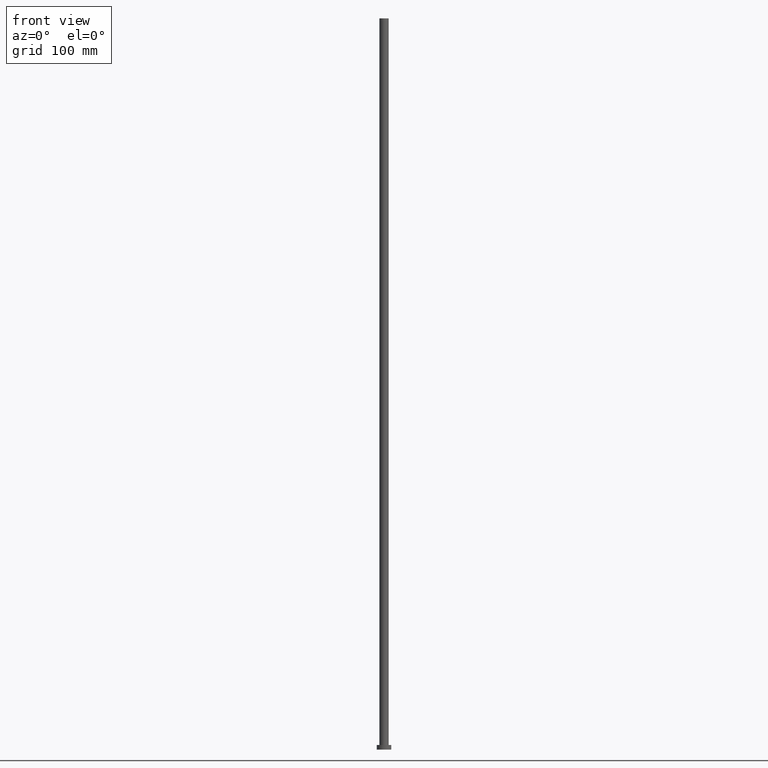
[diagram: clean part render]
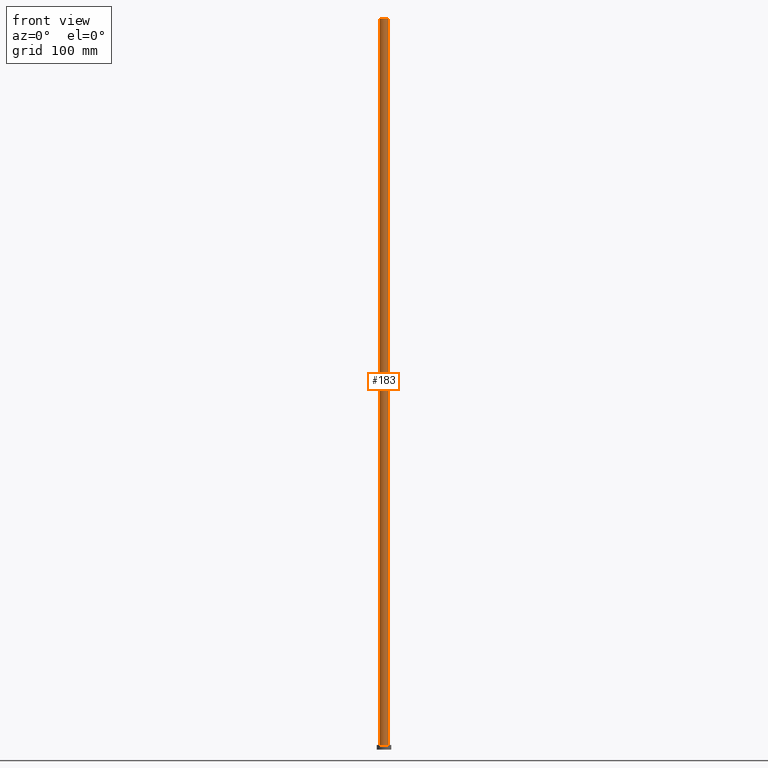
[diagram: same view with one face highlighted and labeled with its STEP entity id]
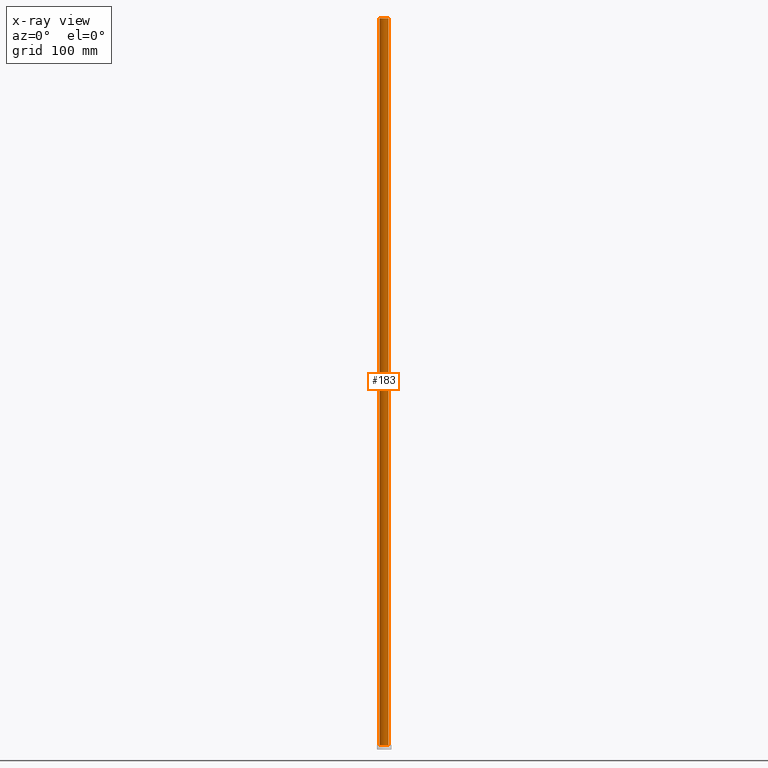
[diagram: x-ray of the same camera — body ghosted, the highlighted face saturated]
A machine part, front view. The second image highlights one B-rep face of the part: STEP entity #183.
The next image is the same camera in x-ray: the body ghosted, the highlighted face saturated — about 0% of this face is hidden behind the body in this view.
In plain terms, the highlighted cylindrical surface (edge-blend (fillet) strip) has radius 5 mm, axis along (-0, -0, -1).
Its self-contained STEP definition (entity closure, byte-faithful):
#2 = ORIENTED_EDGE ( 'NONE', *, *, #237, .T. ) ;
#9 = VERTEX_POINT ( 'NONE', #63 ) ;
#17 = DIRECTION ( 'NONE',  ( 1.000000000000000000, 0.000000000000000000, 0.000000000000000000 ) ) ;
#23 = CARTESIAN_POINT ( 'NONE',  ( -5.000000000000000888, 0.000000000000000000, 800.0000000000000000 ) ) ;
#28 = VERTEX_POINT ( 'NONE', #188 ) ;
#39 = DIRECTION ( 'NONE',  ( -0.000000000000000000, -0.000000000000000000, -1.000000000000000000 ) ) ;
#44 = LINE ( 'NONE', #61, #243 ) ;
#50 = EDGE_CURVE ( 'NONE', #28, #9, #44, .T. ) ;
#61 = CARTESIAN_POINT ( 'NONE',  ( 5.000000000000000888, 6.123233995736767268E-16, 800.0000000000000000 ) ) ;
#63 = CARTESIAN_POINT ( 'NONE',  ( 5.000000000000000888, 6.123233995736767268E-16, 5.000000000000000000 ) ) ;
#64 = EDGE_LOOP ( 'NONE', ( #83, #182, #235, #2 ) ) ;
#67 = VECTOR ( 'NONE', #176, 1000.000000000000000 ) ;
#80 = VERTEX_POINT ( 'NONE', #105 ) ;
#83 = ORIENTED_EDGE ( 'NONE', *, *, #50, .F. ) ;
#105 = CARTESIAN_POINT ( 'NONE',  ( -5.000000000000000888, 0.000000000000000000, 800.0000000000000000 ) ) ;
#107 = CARTESIAN_POINT ( 'NONE',  ( 0.000000000000000000, 0.000000000000000000, 5.000000000000000000 ) ) ;
#111 = CARTESIAN_POINT ( 'NONE',  ( 0.000000000000000000, 0.000000000000000000, 800.0000000000000000 ) ) ;
#134 = EDGE_CURVE ( 'NONE', #80, #28, #184, .T. ) ;
#136 = AXIS2_PLACEMENT_3D ( 'NONE', #107, #228, #17 ) ;
#142 = AXIS2_PLACEMENT_3D ( 'NONE', #189, #39, #152 ) ;
#152 = DIRECTION ( 'NONE',  ( -1.000000000000000000, 0.000000000000000000, 0.000000000000000000 ) ) ;
#176 = DIRECTION ( 'NONE',  ( -0.000000000000000000, -0.000000000000000000, -1.000000000000000000 ) ) ;
#182 = ORIENTED_EDGE ( 'NONE', *, *, #134, .F. ) ;
#183 = ADVANCED_FACE ( 'NONE', ( #211 ), #227, .T. ) ;
#184 = CIRCLE ( 'NONE', #241, 5.000000000000000888 ) ;
#187 = VERTEX_POINT ( 'NONE', #230 ) ;
#188 = CARTESIAN_POINT ( 'NONE',  ( 5.000000000000000888, 6.123233995736767268E-16, 800.0000000000000000 ) ) ;
#189 = CARTESIAN_POINT ( 'NONE',  ( 0.000000000000000000, 0.000000000000000000, 800.0000000000000000 ) ) ;
#194 = DIRECTION ( 'NONE',  ( 0.000000000000000000, 0.000000000000000000, 1.000000000000000000 ) ) ;
#201 = EDGE_CURVE ( 'NONE', #80, #187, #212, .T. ) ;
#211 = FACE_OUTER_BOUND ( 'NONE', #64, .T. ) ;
#212 = LINE ( 'NONE', #23, #67 ) ;
#227 = CYLINDRICAL_SURFACE ( 'NONE', #142, 5.000000000000000888 ) ;
#228 = DIRECTION ( 'NONE',  ( 0.000000000000000000, 0.000000000000000000, 1.000000000000000000 ) ) ;
#230 = CARTESIAN_POINT ( 'NONE',  ( -5.000000000000000888, 0.000000000000000000, 5.000000000000000000 ) ) ;
#235 = ORIENTED_EDGE ( 'NONE', *, *, #201, .T. ) ;
#237 = EDGE_CURVE ( 'NONE', #187, #9, #249, .T. ) ;
#241 = AXIS2_PLACEMENT_3D ( 'NONE', #111, #194, #255 ) ;
#243 = VECTOR ( 'NONE', #244, 1000.000000000000000 ) ;
#244 = DIRECTION ( 'NONE',  ( -0.000000000000000000, -0.000000000000000000, -1.000000000000000000 ) ) ;
#249 = CIRCLE ( 'NONE', #136, 5.000000000000000888 ) ;
#255 = DIRECTION ( 'NONE',  ( 1.000000000000000000, 0.000000000000000000, 0.000000000000000000 ) ) ;